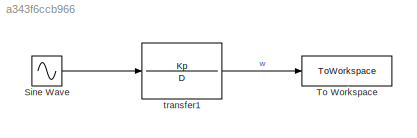
MODEL slx_a343f6ccb966
KIND model
CONFIG AbsTol = auto
CONFIG EnableMultiTasking = off
CONFIG FixedStep = auto
CONFIG MaxStep = auto
CONFIG MinStep = auto
CONFIG RelTol = 1e-3
CONFIG SampleTimeConstraint = Unconstrained
CONFIG SolverName = VariableStepAuto
CONFIG StartTime = 0.0
CONFIG StopTime = 10.0
BLOCK [Sin] Sine Wave
  Amplitude = 3
  Frequency = 3
  Ports = [0, 1]
  SampleTime = 0.01
BLOCK [ToWorkspace] To Workspace
  FixptAsFi = on
  MaxDataPoints = inf
  Ports = [1]
  SampleTime = -1
  VariableName = sim_dat
BLOCK [TransferFcn] transfer1
  Denominator = D
  Numerator = Kp
LINE Sine Wave:1 -> transfer1:1
LINE transfer1:1 -> To Workspace:1
